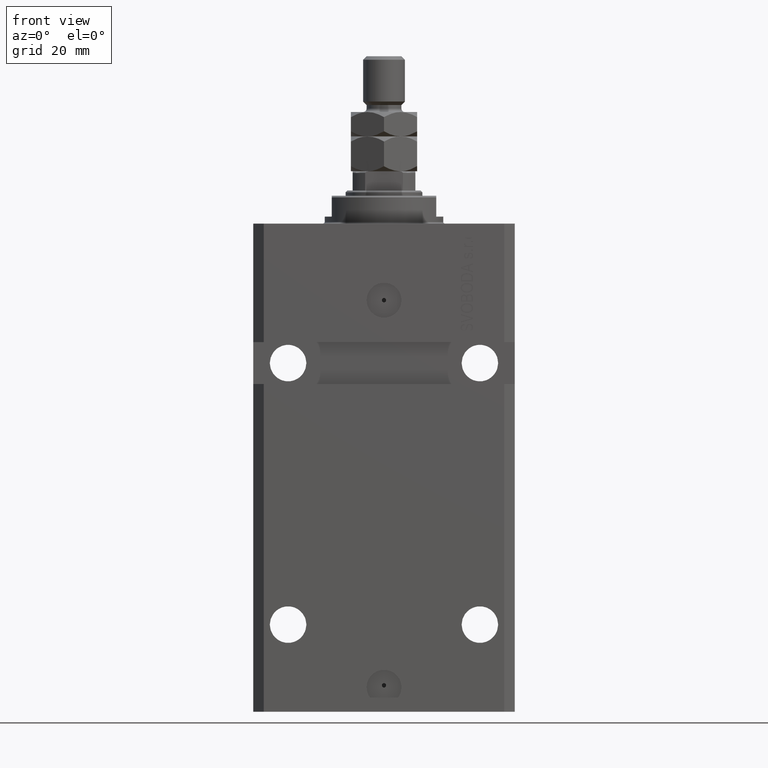
[diagram: clean part render]
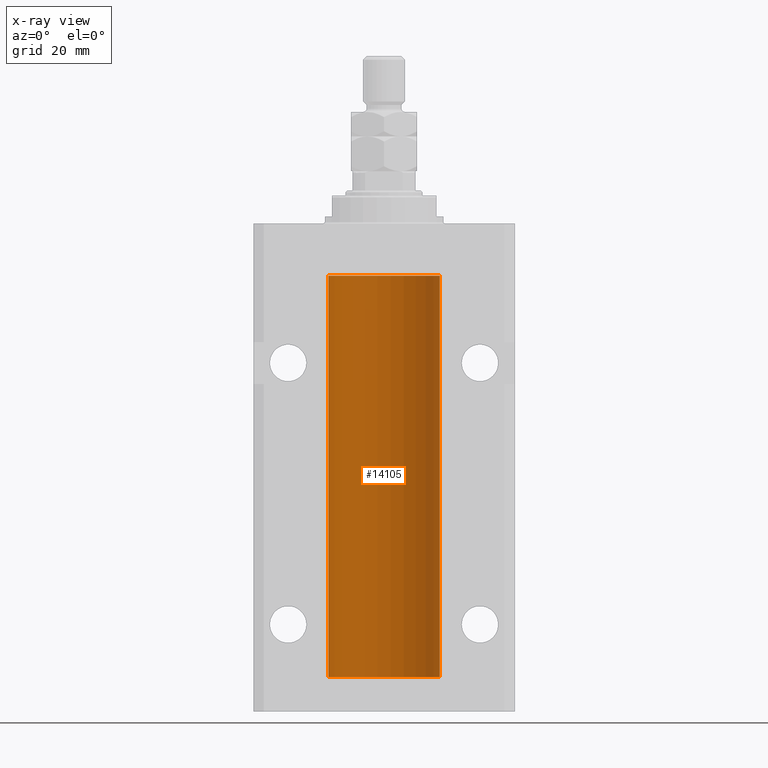
[diagram: x-ray — body ghosted, one internal face saturated and labeled with its STEP entity id]
A machine part, front view, then the same camera in x-ray: the body is ghosted and one INTERNAL B-rep face — a face not visible from any outside direction — is saturated and labeled: STEP entity #14105.
In plain terms, the highlighted cylindrical surface (partial cylindrical patch) has radius 16 mm, axis along (0, 0, 1).
Its self-contained STEP definition (entity closure, byte-faithful):
#774 = CARTESIAN_POINT ( 'NONE',  ( 15.98778830858070954, 0.6250000000080528917, -127.9999999999991473 ) ) ;
#873 = CARTESIAN_POINT ( 'NONE',  ( 15.98778830858104172, 0.6249999999996183053, -21.91847885046212951 ) ) ;
#1317 = DIRECTION ( 'NONE',  ( 0.000000000000000000, 0.000000000000000000, 1.000000000000000000 ) ) ;
#3235 = DIRECTION ( 'NONE',  ( 1.000000000000000000, 0.000000000000000000, 0.000000000000000000 ) ) ;
#4055 = DIRECTION ( 'NONE',  ( -0.000000000000000000, -0.000000000000000000, 1.000000000000000000 ) ) ;
#4732 = CARTESIAN_POINT ( 'NONE',  ( 16.00000000000013145, 3.665533114689029904E-13, -127.3749999999965752 ) ) ;
#4833 = CARTESIAN_POINT ( 'NONE',  ( 15.99070695999104252, 0.5461439696926362330, -21.68526802364053552 ) ) ;
#6620 = EDGE_CURVE ( 'NONE', #30147, #6688, #11341, .T. ) ;
#6688 = VERTEX_POINT ( 'NONE', #39444 ) ;
#7092 = VECTOR ( 'NONE', #34404, 1000.000000000000000 ) ;
#7153 = EDGE_CURVE ( 'NONE', #7515, #42567, #23973, .T. ) ;
#7163 = CIRCLE ( 'NONE', #34019, 16.00000000000000000 ) ;
#7425 = CARTESIAN_POINT ( 'NONE',  ( 15.98844460043492077, 0.6087869699336542206, -21.83657454967558564 ) ) ;
#7515 = VERTEX_POINT ( 'NONE', #46003 ) ;
#8010 = CARTESIAN_POINT ( 'NONE',  ( 15.98844460043492077, 0.6087869699337552509, -127.8365745496755608 ) ) ;
#8175 = CARTESIAN_POINT ( 'NONE',  ( 16.00000000000013145, 3.665532680419208314E-13, -21.37499999999658229 ) ) ;
#8462 = CARTESIAN_POINT ( 'NONE',  ( 15.99711856062700477, 0.3252985083514177145, -127.4414029798771395 ) ) ;
#8493 = B_SPLINE_CURVE_WITH_KNOTS ( 'NONE', 3,
 ( #43513, #26674, #18740, #40002, #12181, #26444, #40908, #22248 ),
 .UNSPECIFIED., .F., .F.,
 ( 4, 2, 2, 4 ),
 ( 2.137109855960538111E-18, 0.0002443331572175100135, 0.0004886663144350179670, 0.0009773326288700927462 ),
 .UNSPECIFIED. ) ;
#8535 = CARTESIAN_POINT ( 'NONE',  ( 15.99707608081895494, 0.3151028052309814975, -22.54594170697728117 ) ) ;
#10322 = VERTEX_POINT ( 'NONE', #37817 ) ;
#11341 = CIRCLE ( 'NONE', #35220, 16.00000000000000000 ) ;
#11621 = CARTESIAN_POINT ( 'NONE',  ( 15.99999999999999289, 0.1631343969470014366, -21.37500000000020606 ) ) ;
#11708 = ORIENTED_EDGE ( 'NONE', *, *, #6620, .F. ) ;
#12043 = CARTESIAN_POINT ( 'NONE',  ( 16.00000000000000000, -7.378931128587136680E-16, -22.62500000000000000 ) ) ;
#12181 = CARTESIAN_POINT ( 'NONE',  ( 15.99548458234361092, 0.3844468804816240093, -128.4994778669635025 ) ) ;
#12436 = CARTESIAN_POINT ( 'NONE',  ( 15.99228275317787151, 0.5002975944204681724, -127.6164201457017668 ) ) ;
#12999 = CARTESIAN_POINT ( 'NONE',  ( 0.000000000000000000, 0.000000000000000000, -130.0999999999999943 ) ) ;
#13269 = DIRECTION ( 'NONE',  ( -0.000000000000000000, -0.000000000000000000, 1.000000000000000000 ) ) ;
#13911 = EDGE_CURVE ( 'NONE', #10322, #27405, #16294, .T. ) ;
#13989 = DIRECTION ( 'NONE',  ( 0.000000000000000000, 0.000000000000000000, 1.000000000000000000 ) ) ;
#14105 = ADVANCED_FACE ( 'NONE', ( #16500 ), #19330, .F. ) ;
#14119 = ORIENTED_EDGE ( 'NONE', *, *, #35593, .T. ) ;
#14273 = EDGE_CURVE ( 'NONE', #42567, #35648, #20164, .T. ) ;
#14365 = ORIENTED_EDGE ( 'NONE', *, *, #7153, .T. ) ;
#14901 = CARTESIAN_POINT ( 'NONE',  ( 15.99711856062700122, 0.3252985083513916242, -21.44140297987714661 ) ) ;
#15028 = CARTESIAN_POINT ( 'NONE',  ( 15.99070695999103542, 0.5461439696927218312, -127.6852680236405035 ) ) ;
#15042 = ORIENTED_EDGE ( 'NONE', *, *, #33892, .T. ) ;
#15131 = CARTESIAN_POINT ( 'NONE',  ( 15.98778830858070954, 0.6250000000079481977, -21.99999999999914735 ) ) ;
#15342 = VECTOR ( 'NONE', #13269, 1000.000000000000000 ) ;
#15576 = DIRECTION ( 'NONE',  ( 1.000000000000000000, 0.000000000000000000, 0.000000000000000000 ) ) ;
#16294 = B_SPLINE_CURVE_WITH_KNOTS ( 'NONE', 3,
 ( #15131, #873, #7425, #4833, #39666, #14901, #11621, #40122 ),
 .UNSPECIFIED., .F., .F.,
 ( 4, 2, 2, 4 ),
 ( 0.0009773326288699671956, 0.001221554802188560499, 0.001465776975507153803, 0.001954221322144333254 ),
 .UNSPECIFIED. ) ;
#16500 = FACE_OUTER_BOUND ( 'NONE', #19658, .T. ) ;
#17951 = CARTESIAN_POINT ( 'NONE',  ( 0.000000000000000000, 0.000000000000000000, -130.0999999999999943 ) ) ;
#18120 = DIRECTION ( 'NONE',  ( -0.000000000000000000, -0.000000000000000000, 1.000000000000000000 ) ) ;
#18396 = EDGE_CURVE ( 'NONE', #30147, #34047, #39568, .T. ) ;
#18740 = CARTESIAN_POINT ( 'NONE',  ( 15.99934183755190986, 0.1636877470527098033, -128.6087269065407384 ) ) ;
#19300 = CARTESIAN_POINT ( 'NONE',  ( 15.98778830858101152, 0.6250000000001202372, -22.16311639173018477 ) ) ;
#19330 = CYLINDRICAL_SURFACE ( 'NONE', #22775, 16.00000000000000000 ) ;
#19658 = EDGE_LOOP ( 'NONE', ( #38823, #11708, #40046, #15042, #14365, #23848, #43734, #39986, #14119, #28794 ) ) ;
#20164 = LINE ( 'NONE', #23894, #7092 ) ;
#20650 = CARTESIAN_POINT ( 'NONE',  ( 16.00000000000000000, 0.000000000000000000, -130.0999999999999943 ) ) ;
#21169 = LINE ( 'NONE', #42424, #37831 ) ;
#21454 = CARTESIAN_POINT ( 'NONE',  ( 16.00000000000000000, 0.000000000000000000, -15.00000000000000000 ) ) ;
#22248 = CARTESIAN_POINT ( 'NONE',  ( 15.98778830858070954, 0.6250000000080528917, -127.9999999999991473 ) ) ;
#22775 = AXIS2_PLACEMENT_3D ( 'NONE', #12999, #27267, #33575 ) ;
#22797 = CARTESIAN_POINT ( 'NONE',  ( 15.99548458234361803, 0.3844468804815583396, -22.49947786696350960 ) ) ;
#23620 = CARTESIAN_POINT ( 'NONE',  ( 16.00000000000000000, 2.199125140786256469E-15, -128.6250000000000284 ) ) ;
#23848 = ORIENTED_EDGE ( 'NONE', *, *, #14273, .T. ) ;
#23894 = CARTESIAN_POINT ( 'NONE',  ( 16.00000000000000000, 0.000000000000000000, -130.0999999999999943 ) ) ;
#23973 = B_SPLINE_CURVE_WITH_KNOTS ( 'NONE', 3,
 ( #774, #33010, #8010, #15028, #12436, #8462, #29739, #4732 ),
 .UNSPECIFIED., .F., .F.,
 ( 4, 2, 2, 4 ),
 ( 0.0009773326288700927462, 0.001221554802188709252, 0.001465776975507325757, 0.001954221322144558768 ),
 .UNSPECIFIED. ) ;
#26307 = CARTESIAN_POINT ( 'NONE',  ( 16.00000000000000000, 0.08261762387942135633, -22.62499999999996803 ) ) ;
#26444 = CARTESIAN_POINT ( 'NONE',  ( 15.99070366873610993, 0.5574063959867617823, -128.3263943683755315 ) ) ;
#26674 = CARTESIAN_POINT ( 'NONE',  ( 16.00000000000000355, 0.08261762387943334673, -128.6250000000000000 ) ) ;
#27267 = DIRECTION ( 'NONE',  ( -0.000000000000000000, -0.000000000000000000, 1.000000000000000000 ) ) ;
#27405 = VERTEX_POINT ( 'NONE', #8175 ) ;
#28635 = EDGE_CURVE ( 'NONE', #6688, #44004, #41999, .T. ) ;
#28794 = ORIENTED_EDGE ( 'NONE', *, *, #29792, .T. ) ;
#29739 = CARTESIAN_POINT ( 'NONE',  ( 15.99999999999998934, 0.1631343969470183675, -127.3750000000001847 ) ) ;
#29792 = EDGE_CURVE ( 'NONE', #35443, #44004, #7163, .T. ) ;
#30147 = VERTEX_POINT ( 'NONE', #20650 ) ;
#31685 = CARTESIAN_POINT ( 'NONE',  ( 16.00000000000000000, -7.378931128587136680E-16, -22.62500000000000000 ) ) ;
#32681 = CARTESIAN_POINT ( 'NONE',  ( 16.00000000000013145, 3.665533114689029904E-13, -127.3749999999965752 ) ) ;
#33010 = CARTESIAN_POINT ( 'NONE',  ( 15.98778830858103817, 0.6249999999997200018, -127.9184788504620940 ) ) ;
#33337 = CARTESIAN_POINT ( 'NONE',  ( 0.000000000000000000, 0.000000000000000000, -15.00000000000000000 ) ) ;
#33548 = CARTESIAN_POINT ( 'NONE',  ( 15.98778830858070954, 0.6250000000079481977, -21.99999999999914735 ) ) ;
#33575 = DIRECTION ( 'NONE',  ( 1.000000000000000000, 0.000000000000000000, 0.000000000000000000 ) ) ;
#33892 = EDGE_CURVE ( 'NONE', #34047, #7515, #8493, .T. ) ;
#34019 = AXIS2_PLACEMENT_3D ( 'NONE', #33337, #1317, #15576 ) ;
#34047 = VERTEX_POINT ( 'NONE', #23620 ) ;
#34404 = DIRECTION ( 'NONE',  ( -0.000000000000000000, -0.000000000000000000, 1.000000000000000000 ) ) ;
#35220 = AXIS2_PLACEMENT_3D ( 'NONE', #17951, #13989, #3235 ) ;
#35443 = VERTEX_POINT ( 'NONE', #21454 ) ;
#35593 = EDGE_CURVE ( 'NONE', #27405, #35443, #21169, .T. ) ;
#35648 = VERTEX_POINT ( 'NONE', #31685 ) ;
#35829 = CARTESIAN_POINT ( 'NONE',  ( 16.00000000000000000, 0.000000000000000000, -130.0999999999999943 ) ) ;
#37749 = EDGE_CURVE ( 'NONE', #35648, #10322, #38273, .T. ) ;
#37817 = CARTESIAN_POINT ( 'NONE',  ( 15.98778830858070954, 0.6250000000079481977, -21.99999999999914735 ) ) ;
#37831 = VECTOR ( 'NONE', #18120, 1000.000000000000000 ) ;
#38273 = B_SPLINE_CURVE_WITH_KNOTS ( 'NONE', 3,
 ( #12043, #26307, #40544, #8535, #22797, #44745, #19300, #33548 ),
 .UNSPECIFIED., .F., .F.,
 ( 4, 2, 2, 4 ),
 ( 1.864948331951035013E-18, 0.0002443331572174913110, 0.0004886663144349807789, 0.0009773326288699671956 ),
 .UNSPECIFIED. ) ;
#38823 = ORIENTED_EDGE ( 'NONE', *, *, #28635, .F. ) ;
#38877 = VECTOR ( 'NONE', #4055, 1000.000000000000000 ) ;
#39444 = CARTESIAN_POINT ( 'NONE',  ( -16.00000000000000000, 1.959434878635765131E-15, -130.0999999999999943 ) ) ;
#39568 = LINE ( 'NONE', #35829, #38877 ) ;
#39666 = CARTESIAN_POINT ( 'NONE',  ( 15.99228275317787507, 0.5002975944204003378, -21.61642014570181303 ) ) ;
#39986 = ORIENTED_EDGE ( 'NONE', *, *, #13911, .T. ) ;
#40002 = CARTESIAN_POINT ( 'NONE',  ( 15.99707608081894783, 0.3151028052310348992, -128.5459417069773451 ) ) ;
#40046 = ORIENTED_EDGE ( 'NONE', *, *, #18396, .T. ) ;
#40122 = CARTESIAN_POINT ( 'NONE',  ( 16.00000000000013145, 3.665532680419208314E-13, -21.37499999999658229 ) ) ;
#40544 = CARTESIAN_POINT ( 'NONE',  ( 15.99934183755191341, 0.1636877470526788836, -22.60872690654067796 ) ) ;
#40908 = CARTESIAN_POINT ( 'NONE',  ( 15.98778830858101152, 0.6250000000002303713, -128.1631163917302274 ) ) ;
#41999 = LINE ( 'NONE', #45283, #15342 ) ;
#42424 = CARTESIAN_POINT ( 'NONE',  ( 16.00000000000000000, 0.000000000000000000, -130.0999999999999943 ) ) ;
#42567 = VERTEX_POINT ( 'NONE', #32681 ) ;
#43487 = CARTESIAN_POINT ( 'NONE',  ( -16.00000000000000000, 1.959434878635765131E-15, -15.00000000000000000 ) ) ;
#43513 = CARTESIAN_POINT ( 'NONE',  ( 16.00000000000000000, 2.199125140786256469E-15, -128.6250000000000284 ) ) ;
#43734 = ORIENTED_EDGE ( 'NONE', *, *, #37749, .T. ) ;
#44004 = VERTEX_POINT ( 'NONE', #43487 ) ;
#44745 = CARTESIAN_POINT ( 'NONE',  ( 15.99070366873610638, 0.5574063959866681905, -22.32639436837549596 ) ) ;
#45283 = CARTESIAN_POINT ( 'NONE',  ( -16.00000000000000000, 1.959434878635765131E-15, -130.0999999999999943 ) ) ;
#46003 = CARTESIAN_POINT ( 'NONE',  ( 15.98778830858070954, 0.6250000000080528917, -127.9999999999991473 ) ) ;